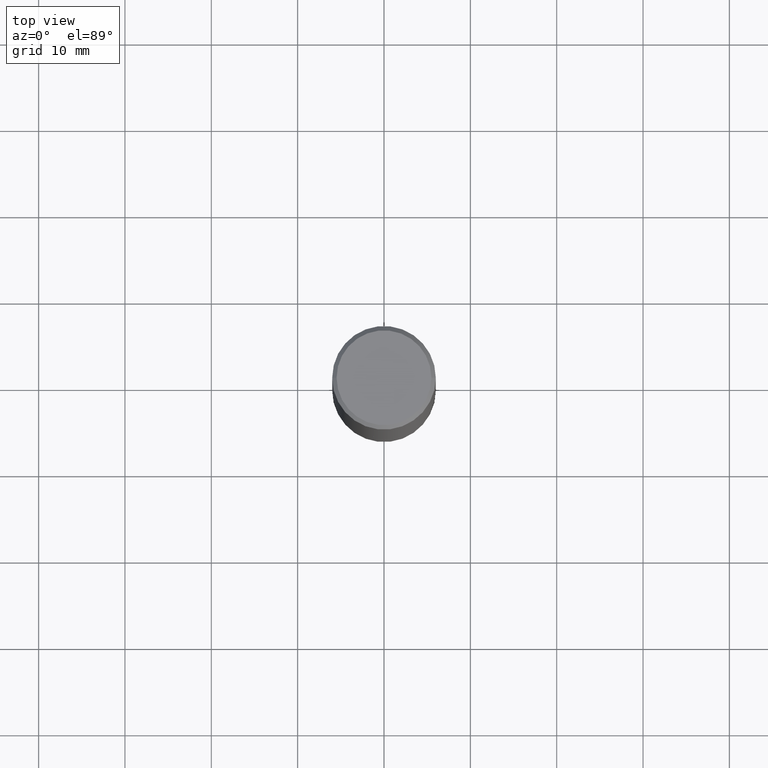
[diagram: clean part render]
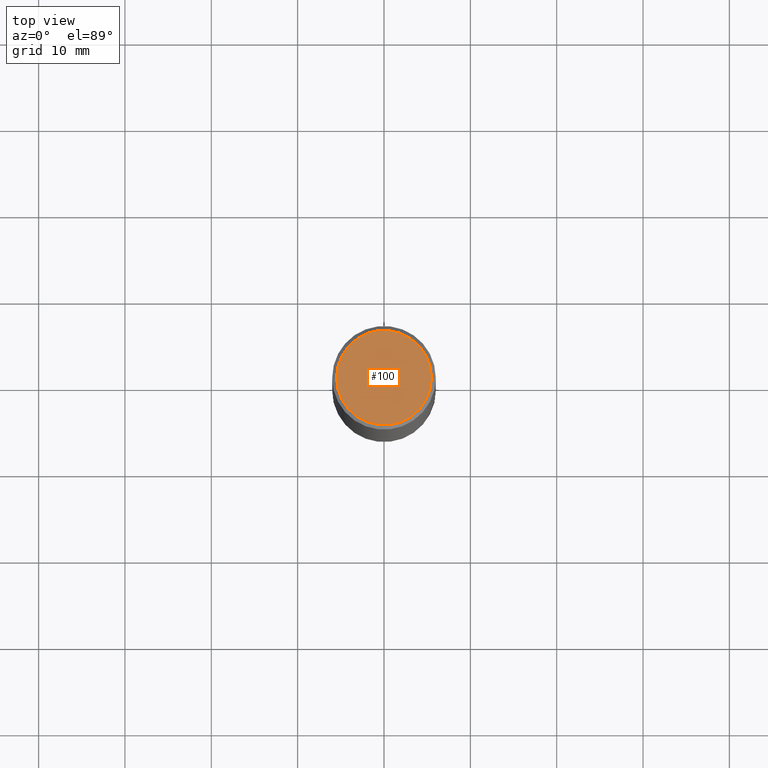
[diagram: same view with one face highlighted and labeled with its STEP entity id]
A machine part, top view. The second image highlights one B-rep face of the part: STEP entity #100.
In plain terms, the highlighted planar face has unit normal (0, -0, -1).
Its self-contained STEP definition (entity closure, byte-faithful):
#14 = DIRECTION ( 'NONE',  ( -1.000000000000000000, 6.982962677686265922E-15, -4.876176775795935793E-29 ) ) ;
#26 = CARTESIAN_POINT ( 'NONE',  ( -1.043851414335219820E-46, 1.490343170380447200E-32, 4.268512490100411279E-18 ) ) ;
#31 = ORIENTED_EDGE ( 'NONE', *, *, #328, .T. ) ;
#40 = ORIENTED_EDGE ( 'NONE', *, *, #87, .T. ) ;
#74 = PLANE ( 'NONE',  #180 ) ;
#87 = EDGE_CURVE ( 'NONE', #339, #159, #322, .T. ) ;
#100 = ADVANCED_FACE ( 'NONE', ( #274 ), #74, .F. ) ;
#114 = CARTESIAN_POINT ( 'NONE',  ( 0.2161999999999997257, -1.586759460484350016E-15, 4.268512490111238857E-18 ) ) ;
#131 = DIRECTION ( 'NONE',  ( -2.445468806185136597E-29, 3.491481338843145583E-15, 1.000000000000000000 ) ) ;
#159 = VERTEX_POINT ( 'NONE', #114 ) ;
#160 = CARTESIAN_POINT ( 'NONE',  ( -1.043851414335219820E-46, 1.490343170380447200E-32, 4.268512490100411279E-18 ) ) ;
#170 = CARTESIAN_POINT ( 'NONE',  ( -0.2161999999999997257, 1.544631344304200197E-15, 4.268512490089730842E-18 ) ) ;
#180 = AXIS2_PLACEMENT_3D ( 'NONE', #216, #245, #14 ) ;
#196 = AXIS2_PLACEMENT_3D ( 'NONE', #160, #299, #323 ) ;
#216 = CARTESIAN_POINT ( 'NONE',  ( 1.509716530915768746E-15, 0.2161999999999997257, -7.527240092128370190E-16 ) ) ;
#229 = AXIS2_PLACEMENT_3D ( 'NONE', #26, #131, #268 ) ;
#245 = DIRECTION ( 'NONE',  ( 2.438088387897960049E-29, -3.491481338843145188E-15, -1.000000000000000000 ) ) ;
#259 = CIRCLE ( 'NONE', #229, 0.2161999999999997257 ) ;
#268 = DIRECTION ( 'NONE',  ( 1.000000000000000000, -6.982962677686267499E-15, 4.876217060660161841E-29 ) ) ;
#274 = FACE_OUTER_BOUND ( 'NONE', #337, .T. ) ;
#299 = DIRECTION ( 'NONE',  ( -2.445468806185136597E-29, 3.491481338843145583E-15, 1.000000000000000000 ) ) ;
#322 = CIRCLE ( 'NONE', #196, 0.2161999999999997257 ) ;
#323 = DIRECTION ( 'NONE',  ( 1.000000000000000000, -6.982962677686267499E-15, 4.876217060660161841E-29 ) ) ;
#328 = EDGE_CURVE ( 'NONE', #159, #339, #259, .T. ) ;
#337 = EDGE_LOOP ( 'NONE', ( #40, #31 ) ) ;
#339 = VERTEX_POINT ( 'NONE', #170 ) ;